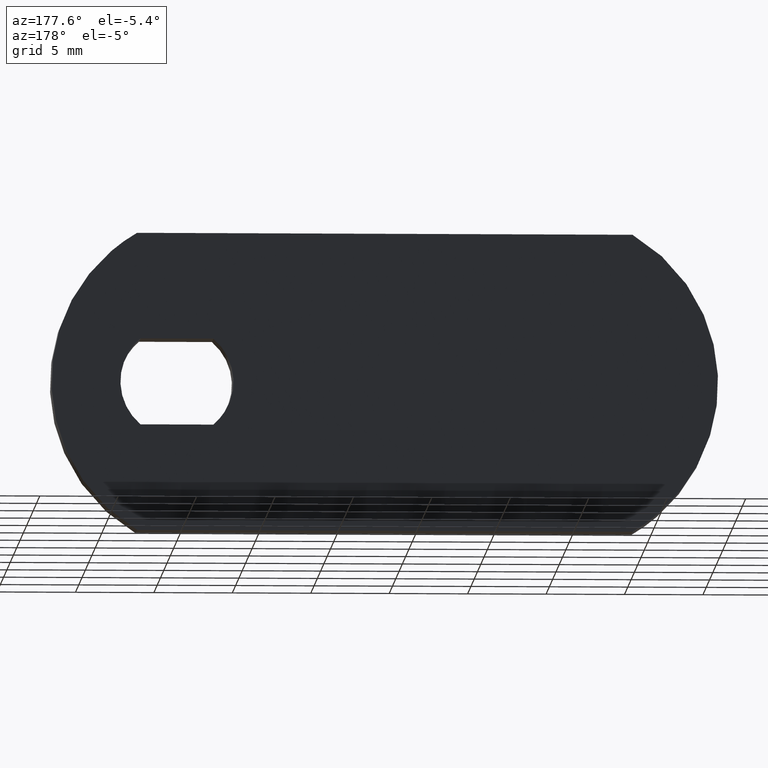
[diagram: clean part render]
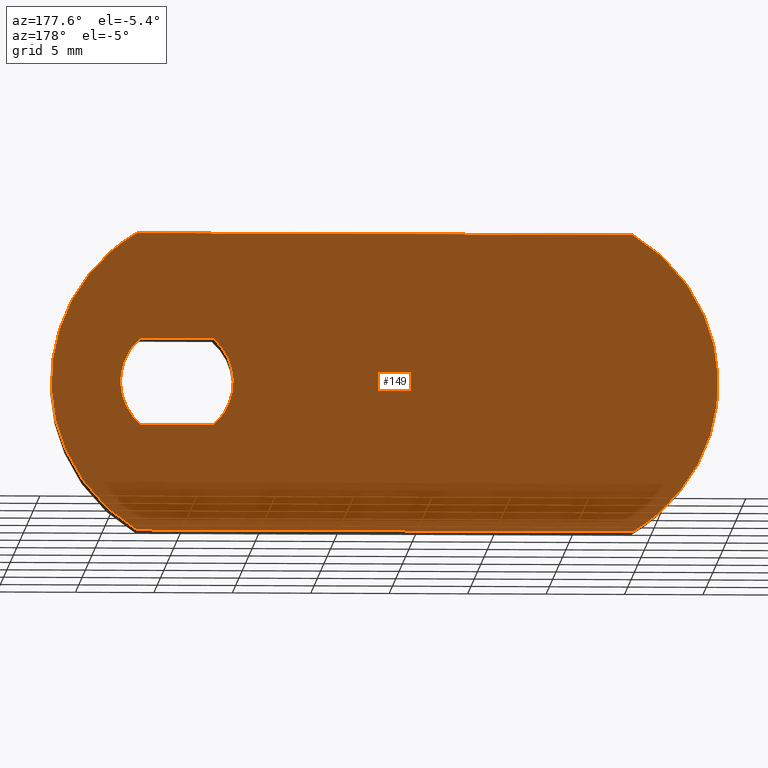
[diagram: same view with one face highlighted and labeled with its STEP entity id]
A machine part, auxiliary view. The second image highlights one B-rep face of the part: STEP entity #149.
In plain terms, the highlighted face is a freeform B-spline surface patch.
Its self-contained STEP definition (entity closure, byte-faithful):
#44=CARTESIAN_POINT('',(-36.622874917626753,0.0,10.449049963174311));
#45=CARTESIAN_POINT('',(10.122876057565581,0.0,10.449049963174311));
#46=CARTESIAN_POINT('',(-36.622874917626753,0.0,-10.449050472794029));
#47=CARTESIAN_POINT('',(10.122876057565581,0.0,-10.449050472794029));
#48=B_SPLINE_SURFACE_WITH_KNOTS('',1,1,((#44,#46),(#45,#47)),.UNSPECIFIED.,.F.,.F.,.U.,(2,2),(2,2),(0.0,46.745750975192337),(0.0,20.898100435968342),.UNSPECIFIED.);
#49=CARTESIAN_POINT('',(-29.045268253204700,0.0,9.500000000000000));
#50=VERTEX_POINT('',#49);
#51=CARTESIAN_POINT('',(2.545268253204700,0.0,9.500000000000000));
#52=VERTEX_POINT('',#51);
#53=CARTESIAN_POINT('',(-29.045268253204700,0.0,9.500000000000000));
#54=CARTESIAN_POINT('',(2.545268253204700,0.0,9.500000000000000));
#55=QUASI_UNIFORM_CURVE('',1,(#53,#54),.UNSPECIFIED.,.F.,.U.);
#56=EDGE_CURVE('',#50,#52,#55,.T.);
#57=ORIENTED_EDGE('',*,*,#56,.T.);
#58=CARTESIAN_POINT('',(2.545268253204700,0.0,-9.500000000000000));
#59=VERTEX_POINT('',#58);
#60=CARTESIAN_POINT('',(2.545268253204699,0.0,-9.500000000000005));
#61=CARTESIAN_POINT('',(8.0,0.0,-6.316005180499818));
#62=CARTESIAN_POINT('',(8.0,0.0,0.0));
#63=CARTESIAN_POINT('',(8.0,0.0,6.316005180499816));
#64=CARTESIAN_POINT('',(2.545268253204703,0.0,9.500000000000004));
#72=(BOUNDED_CURVE()B_SPLINE_CURVE(2,(#60,#61,#62,#63,#64),.UNSPECIFIED.,.F.,.U.)B_SPLINE_CURVE_WITH_KNOTS((3,2,3),(0.0,0.500000000000000,1.0),.UNSPECIFIED.)CURVE()GEOMETRIC_REPRESENTATION_ITEM()RATIONAL_B_SPLINE_CURVE((1.0,0.867212573636326,1.0,0.867212573636326,1.0))REPRESENTATION_ITEM(''));
#73=EDGE_CURVE('',#59,#52,#72,.T.);
#74=ORIENTED_EDGE('',*,*,#73,.F.);
#75=CARTESIAN_POINT('',(-29.045268253204700,0.0,-9.500000000000000));
#76=VERTEX_POINT('',#75);
#77=CARTESIAN_POINT('',(2.545268253204700,0.0,-9.500000000000000));
#78=CARTESIAN_POINT('',(-29.045268253204700,0.0,-9.500000000000000));
#79=QUASI_UNIFORM_CURVE('',1,(#77,#78),.UNSPECIFIED.,.F.,.U.);
#80=EDGE_CURVE('',#59,#76,#79,.T.);
#81=ORIENTED_EDGE('',*,*,#80,.T.);
#82=CARTESIAN_POINT('',(-29.045268253204700,0.0,9.500000000000005));
#83=CARTESIAN_POINT('',(-34.500000000000000,0.0,6.316005180499818));
#84=CARTESIAN_POINT('',(-34.500000000000000,0.0,0.0));
#85=CARTESIAN_POINT('',(-34.500000000000000,0.0,-6.316005180499817));
#86=CARTESIAN_POINT('',(-29.045268253204700,0.0,-9.500000000000004));
#94=(BOUNDED_CURVE()B_SPLINE_CURVE(2,(#82,#83,#84,#85,#86),.UNSPECIFIED.,.F.,.U.)B_SPLINE_CURVE_WITH_KNOTS((3,2,3),(0.0,0.500000000000000,1.0),.UNSPECIFIED.)CURVE()GEOMETRIC_REPRESENTATION_ITEM()RATIONAL_B_SPLINE_CURVE((1.0,0.867212573636326,1.0,0.867212573636326,1.0))REPRESENTATION_ITEM(''));
#95=EDGE_CURVE('',#50,#76,#94,.T.);
#96=ORIENTED_EDGE('',*,*,#95,.F.);
#97=EDGE_LOOP('',(#57,#74,#81,#96));
#98=FACE_OUTER_BOUND('',#97,.T.);
#99=CARTESIAN_POINT('',(-2.323252031097790,0.0,2.750000000000000));
#100=VERTEX_POINT('',#99);
#101=CARTESIAN_POINT('',(2.323252031097790,0.0,2.750000000000000));
#102=VERTEX_POINT('',#101);
#103=CARTESIAN_POINT('',(-2.323252031097790,0.0,2.750000000000000));
#104=CARTESIAN_POINT('',(2.323252031097790,0.0,2.750000000000000));
#105=QUASI_UNIFORM_CURVE('',1,(#103,#104),.UNSPECIFIED.,.F.,.U.);
#106=EDGE_CURVE('',#100,#102,#105,.T.);
#107=ORIENTED_EDGE('',*,*,#106,.F.);
#108=CARTESIAN_POINT('',(-2.323252031097790,0.0,-2.750000000000000));
#109=VERTEX_POINT('',#108);
#110=CARTESIAN_POINT('',(-2.323252031097790,0.0,2.749999999999999));
#111=CARTESIAN_POINT('',(-3.600000000000001,0.0,1.671379159290166));
#112=CARTESIAN_POINT('',(-3.600000000000000,0.0,0.0));
#113=CARTESIAN_POINT('',(-3.600000000000001,0.0,-1.671379159290167));
#114=CARTESIAN_POINT('',(-2.323252031097789,0.0,-2.750000000000000));
#122=(BOUNDED_CURVE()B_SPLINE_CURVE(2,(#110,#111,#112,#113,#114),.UNSPECIFIED.,.F.,.U.)B_SPLINE_CURVE_WITH_KNOTS((3,2,3),(0.0,0.500000000000000,1.0),.UNSPECIFIED.)CURVE()GEOMETRIC_REPRESENTATION_ITEM()RATIONAL_B_SPLINE_CURVE((1.0,0.907013722723105,1.0,0.907013722723105,1.0))REPRESENTATION_ITEM(''));
#123=EDGE_CURVE('',#100,#109,#122,.T.);
#124=ORIENTED_EDGE('',*,*,#123,.T.);
#125=CARTESIAN_POINT('',(2.323252031097790,0.0,-2.750000000000000));
#126=VERTEX_POINT('',#125);
#127=CARTESIAN_POINT('',(2.323252031097790,0.0,-2.750000000000000));
#128=CARTESIAN_POINT('',(-2.323252031097790,0.0,-2.750000000000000));
#129=QUASI_UNIFORM_CURVE('',1,(#127,#128),.UNSPECIFIED.,.F.,.U.);
#130=EDGE_CURVE('',#126,#109,#129,.T.);
#131=ORIENTED_EDGE('',*,*,#130,.F.);
#132=CARTESIAN_POINT('',(2.323252031097788,0.0,-2.750000000000000));
#133=CARTESIAN_POINT('',(3.600000000000001,0.0,-1.671379159290167));
#134=CARTESIAN_POINT('',(3.600000000000000,0.0,0.0));
#135=CARTESIAN_POINT('',(3.600000000000001,0.0,1.671379159290165));
#136=CARTESIAN_POINT('',(2.323252031097791,0.0,2.749999999999998));
#144=(BOUNDED_CURVE()B_SPLINE_CURVE(2,(#132,#133,#134,#135,#136),.UNSPECIFIED.,.F.,.U.)B_SPLINE_CURVE_WITH_KNOTS((3,2,3),(0.0,0.500000000000000,1.0),.UNSPECIFIED.)CURVE()GEOMETRIC_REPRESENTATION_ITEM()RATIONAL_B_SPLINE_CURVE((1.0,0.907013722723105,1.0,0.907013722723105,1.0))REPRESENTATION_ITEM(''));
#145=EDGE_CURVE('',#126,#102,#144,.T.);
#146=ORIENTED_EDGE('',*,*,#145,.T.);
#147=EDGE_LOOP('',(#107,#124,#131,#146));
#148=FACE_BOUND('',#147,.T.);
#149=ADVANCED_FACE('',(#98,#148),#48,.T.);